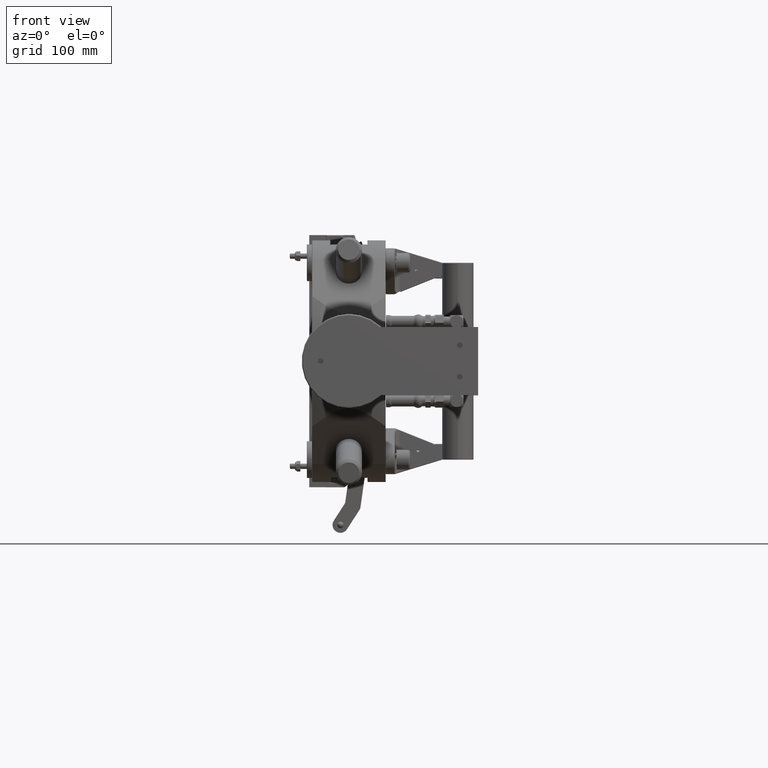
[diagram: clean part render]
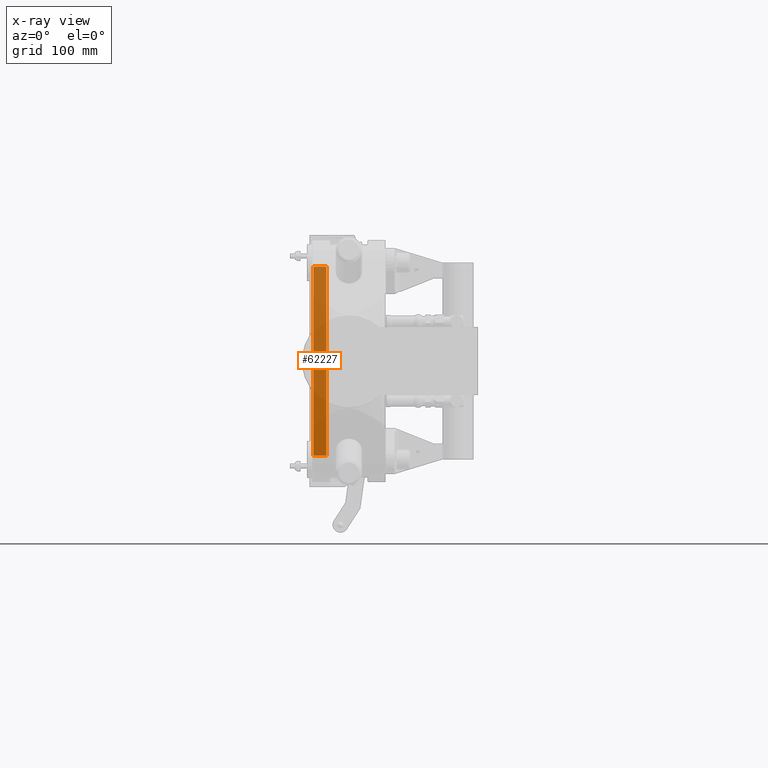
[diagram: x-ray — body ghosted, one internal face saturated and labeled with its STEP entity id]
A machine part, front view, then the same camera in x-ray: the body is ghosted and one INTERNAL B-rep face — a face not visible from any outside direction — is saturated and labeled: STEP entity #62227.
In plain terms, the highlighted planar face has unit normal (0.3561, -0.9344, 0).
Its self-contained STEP definition (entity closure, byte-faithful):
#9426 = AXIS2_PLACEMENT_3D ( 'NONE', #55533, #55546, #55547 ) ;
#23257 = FACE_OUTER_BOUND ( 'NONE', #69417, .T. ) ;
#55533 = CARTESIAN_POINT ( 'NONE',  ( 0.2380000000000001300, -0.8125000000000000000, 4.500000000000000000 ) ) ;
#55541 = PLANE ( 'NONE',  #9426 ) ;
#55546 = DIRECTION ( 'NONE',  ( 0.9344403190689470900, 0.3561197693169032600, -0.0000000000000000000 ) ) ;
#55547 = DIRECTION ( 'NONE',  ( -0.3561197693169032000, 0.9344403190689469800, 0.0000000000000000000 ) ) ;
#62227 = ADVANCED_FACE ( 'NONE', ( #23257 ), #55541, .F. ) ;
#65254 = EDGE_CURVE ( 'NONE', #66885, #66884, #78845, .T. ) ;
#65264 = EDGE_CURVE ( 'NONE', #66884, #66883, #78869, .T. ) ;
#65265 = EDGE_CURVE ( 'NONE', #66882, #66883, #78846, .T. ) ;
#65266 = EDGE_CURVE ( 'NONE', #66885, #66882, #78854, .T. ) ;
#66882 = VERTEX_POINT ( 'NONE', #81357 ) ;
#66883 = VERTEX_POINT ( 'NONE', #81358 ) ;
#66884 = VERTEX_POINT ( 'NONE', #81359 ) ;
#66885 = VERTEX_POINT ( 'NONE', #81360 ) ;
#69417 = EDGE_LOOP ( 'NONE', ( #72580, #72581, #72582, #72583 ) ) ;
#72580 = ORIENTED_EDGE ( 'NONE', *, *, #65265, .T. ) ;
#72581 = ORIENTED_EDGE ( 'NONE', *, *, #65264, .F. ) ;
#72582 = ORIENTED_EDGE ( 'NONE', *, *, #65254, .F. ) ;
#72583 = ORIENTED_EDGE ( 'NONE', *, *, #65266, .T. ) ;
#78845 = LINE ( 'NONE', #79620, #78848 ) ;
#78846 = LINE ( 'NONE', #79630, #78871 ) ;
#78848 = VECTOR ( 'NONE', #79621, 39.37007874015748900 ) ;
#78854 = LINE ( 'NONE', #79642, #78873 ) ;
#78869 = LINE ( 'NONE', #79640, #78870 ) ;
#78870 = VECTOR ( 'NONE', #79641, 39.37007874015748100 ) ;
#78871 = VECTOR ( 'NONE', #79643, 39.37007874015748900 ) ;
#78873 = VECTOR ( 'NONE', #79645, 39.37007874015748100 ) ;
#79620 = CARTESIAN_POINT ( 'NONE',  ( 0.2380000000000001300, -0.8125000000000000000, 4.500000000000000000 ) ) ;
#79621 = DIRECTION ( 'NONE',  ( 0.3561197693169032000, -0.9344403190689469800, -0.0000000000000000000 ) ) ;
#79630 = CARTESIAN_POINT ( 'NONE',  ( 0.2380000000000001300, -0.8125000000000000000, -4.500000000000000000 ) ) ;
#79640 = CARTESIAN_POINT ( 'NONE',  ( 0.2380000000000001300, -0.8125000000000000000, 4.500000000000000000 ) ) ;
#79641 = DIRECTION ( 'NONE',  ( -0.0000000000000000000, -0.0000000000000000000, -1.000000000000000000 ) ) ;
#79642 = CARTESIAN_POINT ( 'NONE',  ( 4.370956789862821100E-015, -0.1880000000000018000, 4.500000000000000000 ) ) ;
#79643 = DIRECTION ( 'NONE',  ( 0.3561197693169032000, -0.9344403190689469800, -0.0000000000000000000 ) ) ;
#79645 = DIRECTION ( 'NONE',  ( -0.0000000000000000000, -0.0000000000000000000, -1.000000000000000000 ) ) ;
#81357 = CARTESIAN_POINT ( 'NONE',  ( 4.370956789862821100E-015, -0.1880000000000018000, -4.500000000000000000 ) ) ;
#81358 = CARTESIAN_POINT ( 'NONE',  ( 0.2380000000000001300, -0.8125000000000000000, -4.500000000000000000 ) ) ;
#81359 = CARTESIAN_POINT ( 'NONE',  ( 0.2380000000000001300, -0.8125000000000000000, 4.500000000000000000 ) ) ;
#81360 = CARTESIAN_POINT ( 'NONE',  ( 4.370956789862821100E-015, -0.1880000000000018000, 4.500000000000000000 ) ) ;